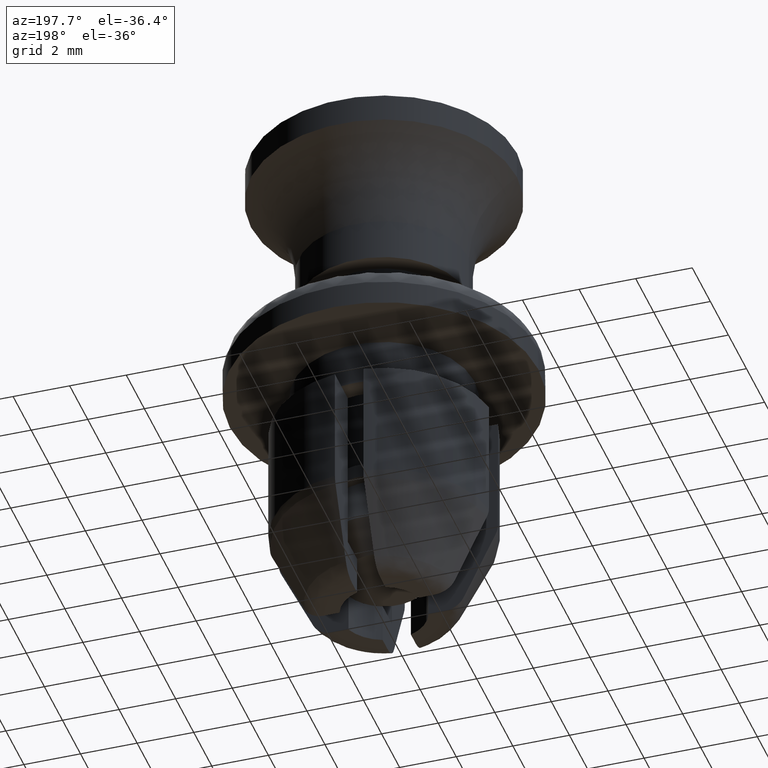
[diagram: clean part render]
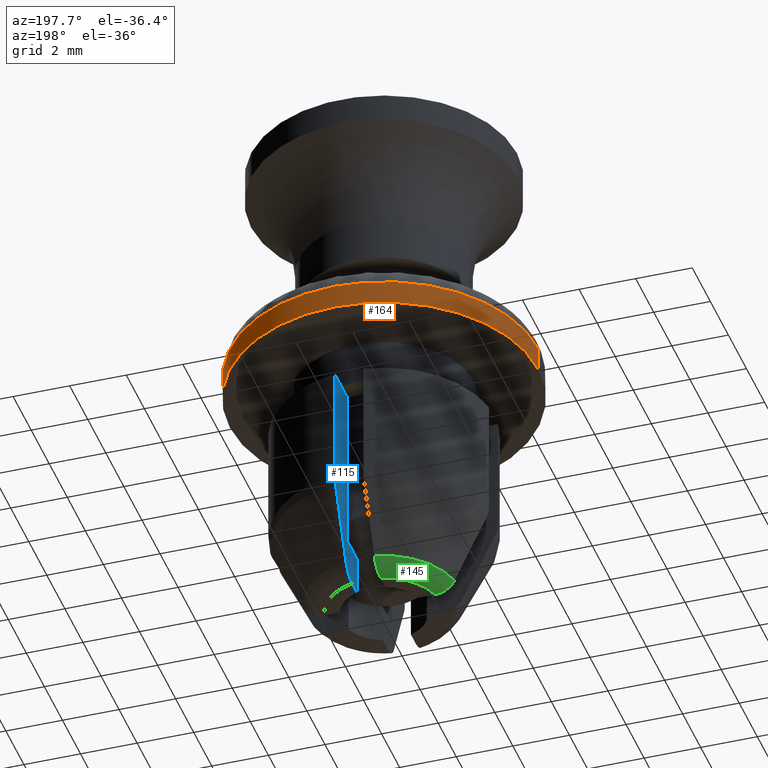
[diagram: same view with three faces highlighted in distinct colors, each labeled with its STEP entity id]
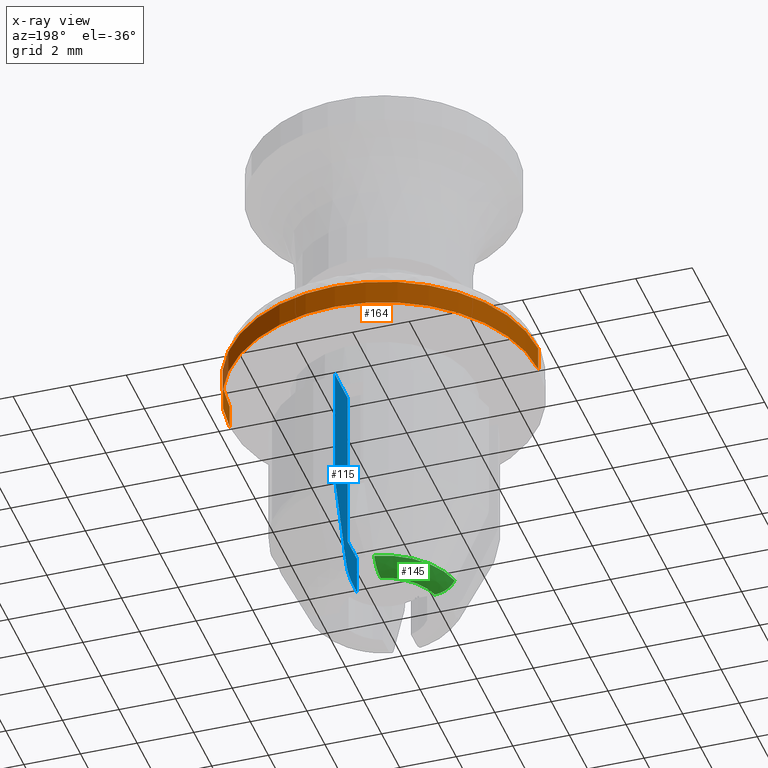
[diagram: x-ray of the same camera — body ghosted, the three highlighted faces saturated]
A machine part, auxiliary view with three faces highlighted in distinct colors.
The next image is the same camera in x-ray (body ghosted, the three faces saturated) — at least one of them is partly hidden behind the body in this view.
Their STEP definitions:

[orange] entity #164 — the highlighted cylindrical surface (partial cylindrical patch) has radius 5.45 mm, axis along (0, 0, 1).
#164=ADVANCED_FACE('',(#715),#714,.T.);
#714=CYLINDRICAL_SURFACE('',#1388,5.45000000000E+00);
#715=FACE_OUTER_BOUND('',#1389,.T.);
#1385=CARTESIAN_POINT('',(0.00000000000E+00,0.00000000000E+00,0.00000000000E+00));
#1386=DIRECTION('',(-0.00000000000E+00,-0.00000000000E+00,1.00000000000E+00));
#1387=DIRECTION('',(1.00000000000E+00,0.00000000000E+00,0.00000000000E+00));
#1388=AXIS2_PLACEMENT_3D('',#1385,#1386,#1387);
#1389=EDGE_LOOP('',(#1874,#1875,#1876,#1877));
#1874=ORIENTED_EDGE('',*,*,#2143,.T.);
#1875=ORIENTED_EDGE('',*,*,#2144,.F.);
#1876=ORIENTED_EDGE('',*,*,#2081,.F.);
#1877=ORIENTED_EDGE('',*,*,#2145,.T.);
#2081=EDGE_CURVE('',#2761,#2762,#2763,.T.);
#2143=EDGE_CURVE('',#3141,#3140,#3160,.T.);
#2144=EDGE_CURVE('',#2762,#3140,#3166,.T.);
#2145=EDGE_CURVE('',#2761,#3141,#3172,.T.);
#2761=VERTEX_POINT('',#3877);
#2762=VERTEX_POINT('',#3878);
#2763=CIRCLE('',#3882,5.45000000000E+00);
#3140=VERTEX_POINT('',#4123);
#3141=VERTEX_POINT('',#4124);
#3160=CIRCLE('',#4138,5.45000000000E+00);
#3166=(BOUNDED_CURVE() B_SPLINE_CURVE(1,(#4139,#4140),.UNSPECIFIED.,.F.,.F.) B_SPLINE_CURVE_WITH_KNOTS((2,2),(8.33332935974E-02,9.16666633252E-01),.UNSPECIFIED.) CURVE() GEOMETRIC_REPRESENTATION_ITEM() RATIONAL_B_SPLINE_CURVE((1.00000000000E+00,1.00000000000E+00)) REPRESENTATION_ITEM('') );
#3172=(BOUNDED_CURVE() B_SPLINE_CURVE(1,(#4141,#4142),.UNSPECIFIED.,.F.,.F.) B_SPLINE_CURVE_WITH_KNOTS((2,2),(8.33333333333E-02,9.16666666667E-01),.UNSPECIFIED.) CURVE() GEOMETRIC_REPRESENTATION_ITEM() RATIONAL_B_SPLINE_CURVE((7.50000000000E-01,7.50000000000E-01)) REPRESENTATION_ITEM('') );
#3877=CARTESIAN_POINT('',(-5.45000000000E+00,0.00000000000E+00,-2.00000000000E+00));
#3878=CARTESIAN_POINT('',(5.45000000000E+00,2.96059473233E-16,-2.00000000000E+00));
#3879=CARTESIAN_POINT('',(0.00000000000E+00,0.00000000000E+00,-2.00000000000E+00));
#3880=DIRECTION('',(-0.00000000000E+00,0.00000000000E+00,-1.00000000000E+00));
#3881=DIRECTION('',(-1.00000000000E+00,-1.22460635382E-16,0.00000000000E+00));
#3882=AXIS2_PLACEMENT_3D('',#3879,#3880,#3881);
#4123=CARTESIAN_POINT('',(5.45000000000E+00,2.96059473233E-16,-1.13900000000E+00));
#4124=CARTESIAN_POINT('',(-5.45000000000E+00,0.00000000000E+00,-1.13900000000E+00));
#4135=CARTESIAN_POINT('',(0.00000000000E+00,0.00000000000E+00,-1.13900000000E+00));
#4136=DIRECTION('',(-0.00000000000E+00,0.00000000000E+00,-1.00000000000E+00));
#4137=DIRECTION('',(-1.00000000000E+00,-1.22460635382E-16,0.00000000000E+00));
#4138=AXIS2_PLACEMENT_3D('',#4135,#4136,#4137);
#4139=CARTESIAN_POINT('',(5.45000000000E+00,0.00000000000E+00,-2.00000004106E+00));
#4140=CARTESIAN_POINT('',(5.45000000000E+00,0.00000000000E+00,-1.13900003452E+00));
#4141=CARTESIAN_POINT('',(-5.45000000000E+00,0.00000000000E+00,-2.00000000000E+00));
#4142=CARTESIAN_POINT('',(-5.45000000000E+00,0.00000000000E+00,-1.13900000000E+00));

[blue] entity #115 — the highlighted planar face has unit normal (-1, 0, 0).
#115=ADVANCED_FACE('',(#223),#222,.T.);
#222=PLANE('',#1026);
#223=FACE_OUTER_BOUND('',#1027,.T.);
#1023=CARTESIAN_POINT('',(5.00000000000E-01,1.16885332649E+00,-1.17403300002E+01));
#1024=DIRECTION('',(-1.00000000000E+00,0.00000000000E+00,0.00000000000E+00));
#1025=DIRECTION('',(0.00000000000E+00,0.00000000000E+00,1.00000000000E+00));
#1026=AXIS2_PLACEMENT_3D('',#1023,#1024,#1025);
#1027=EDGE_LOOP('',(#1630,#1631,#1632,#1633,#1634,#1635,#1636,#1637,#1638,#1639));
#1630=ORIENTED_EDGE('',*,*,#2021,.F.);
#1631=ORIENTED_EDGE('',*,*,#2022,.F.);
#1632=ORIENTED_EDGE('',*,*,#2023,.F.);
#1633=ORIENTED_EDGE('',*,*,#2024,.F.);
#1634=ORIENTED_EDGE('',*,*,#2025,.F.);
#1635=ORIENTED_EDGE('',*,*,#2026,.F.);
#1636=ORIENTED_EDGE('',*,*,#2027,.F.);
#1637=ORIENTED_EDGE('',*,*,#2028,.T.);
#1638=ORIENTED_EDGE('',*,*,#2029,.T.);
#1639=ORIENTED_EDGE('',*,*,#2030,.T.);
#2021=EDGE_CURVE('',#2354,#2355,#2356,.T.);
#2022=EDGE_CURVE('',#2362,#2354,#2363,.T.);
#2023=EDGE_CURVE('',#2369,#2362,#2370,.T.);
#2024=EDGE_CURVE('',#2376,#2369,#2377,.T.);
#2025=EDGE_CURVE('',#2383,#2376,#2384,.T.);
#2026=EDGE_CURVE('',#2390,#2383,#2391,.T.);
#2027=EDGE_CURVE('',#2397,#2390,#2398,.T.);
#2028=EDGE_CURVE('',#2397,#2404,#2405,.T.);
#2029=EDGE_CURVE('',#2404,#2411,#2412,.T.);
#2030=EDGE_CURVE('',#2411,#2355,#2418,.T.);
#2354=VERTEX_POINT('',#3603);
#2355=VERTEX_POINT('',#3604);
#2356=LINE('',#3605,#3606);
#2362=VERTEX_POINT('',#3608);
#2363=LINE('',#3609,#3610);
#2369=VERTEX_POINT('',#3612);
#2370=LINE('',#3613,#3614);
#2376=VERTEX_POINT('',#3616);
#2377=LINE('',#3617,#3618);
#2383=VERTEX_POINT('',#3620);
#2384=(BOUNDED_CURVE() B_SPLINE_CURVE(3,(#3621,#3622,#3623,#3624,#3625,#3626),.UNSPECIFIED.,.F.,.F.) B_SPLINE_CURVE_WITH_KNOTS((4,2,4),(1.86419617907E-03,2.03361510426E-03,2.20303402944E-03),.UNSPECIFIED.) CURVE() GEOMETRIC_REPRESENTATION_ITEM() RATIONAL_B_SPLINE_CURVE((1.00000000000E+00,1.00000000000E+00,1.00000000000E+00,1.00000000000E+00,1.00000000000E+00,1.00000000000E+00)) REPRESENTATION_ITEM('') );
#2390=VERTEX_POINT('',#3627);
#2391=(BOUNDED_CURVE() B_SPLINE_CURVE(3,(#3628,#3629,#3630,#3631),.UNSPECIFIED.,.F.,.F.) B_SPLINE_CURVE_WITH_KNOTS((4,4),(3.64126434805E-03,6.30103888672E-03),.UNSPECIFIED.) CURVE() GEOMETRIC_REPRESENTATION_ITEM() RATIONAL_B_SPLINE_CURVE((1.00000000000E+00,1.00000000000E+00,1.00000000000E+00,1.00000000000E+00)) REPRESENTATION_ITEM('') );
#2397=VERTEX_POINT('',#3632);
#2398=(BOUNDED_CURVE() B_SPLINE_CURVE(3,(#3633,#3634,#3635,#3636,#3637,#3638),.UNSPECIFIED.,.F.,.F.) B_SPLINE_CURVE_WITH_KNOTS((4,2,4),(4.64330165083E-04,8.94511229238E-04,1.32471041888E-03),.UNSPECIFIED.) CURVE() GEOMETRIC_REPRESENTATION_ITEM() RATIONAL_B_SPLINE_CURVE((1.00000000000E+00,1.00000000000E+00,1.00000000000E+00,1.00000000000E+00,1.00000000000E+00,1.00000000000E+00)) REPRESENTATION_ITEM('') );
#2404=VERTEX_POINT('',#3639);
#2405=LINE('',#3640,#3641);
#2411=VERTEX_POINT('',#3643);
#2412=LINE('',#3644,#3645);
#2418=LINE('',#3647,#3648);
#3603=CARTESIAN_POINT('',(5.00000000000E-01,2.44948974278E+00,-3.60000000000E+00));
#3604=CARTESIAN_POINT('',(5.00000000000E-01,2.44948974278E+00,-9.60030000000E+00));
#3605=CARTESIAN_POINT('',(5.00000000000E-01,2.44948974278E+00,-3.60000000000E+00));
#3606=VECTOR('',#3607,6.00030000000E+00);
#3607=DIRECTION('',(0.00000000000E+00,0.00000000000E+00,-1.00000000000E+00));
#3608=CARTESIAN_POINT('',(5.00000000000E-01,3.16069612586E+00,-3.60000000000E+00));
#3609=CARTESIAN_POINT('',(5.00000000000E-01,3.16069612586E+00,-3.60000000000E+00));
#3610=VECTOR('',#3611,7.11206383073E-01);
#3611=DIRECTION('',(0.00000000000E+00,-1.00000000000E+00,0.00000000000E+00));
#3612=CARTESIAN_POINT('',(5.00000000000E-01,3.86781592116E+00,-3.60000000000E+00));
#3613=CARTESIAN_POINT('',(5.00000000000E-01,3.86781592116E+00,-3.60000000000E+00));
#3614=VECTOR('',#3615,7.07119795307E-01);
#3615=DIRECTION('',(0.00000000000E+00,-1.00000000000E+00,0.00000000000E+00));
#3616=CARTESIAN_POINT('',(5.00000000000E-01,3.86781592116E+00,-7.83400000000E+00));
#3617=CARTESIAN_POINT('',(5.00000000000E-01,3.86781592116E+00,-7.83400000000E+00));
#3618=VECTOR('',#3619,4.23400000000E+00);
#3619=DIRECTION('',(0.00000000000E+00,0.00000000000E+00,1.00000000000E+00));
#3620=CARTESIAN_POINT('',(5.00000000000E-01,3.79146062764E+00,-8.16238480092E+00));
#3621=CARTESIAN_POINT('',(5.00000000000E-01,3.79146062763E+00,-8.16238480092E+00));
#3622=CARTESIAN_POINT('',(5.00000000000E-01,3.81640532658E+00,-8.11160438406E+00));
#3623=CARTESIAN_POINT('',(5.00000000000E-01,3.83548111475E+00,-8.05837975117E+00));
#3624=CARTESIAN_POINT('',(5.00000000000E-01,3.86143044740E+00,-7.94684863619E+00));
#3625=CARTESIAN_POINT('',(5.00000000000E-01,3.86781592116E+00,-7.89056298747E+00));
#3626=CARTESIAN_POINT('',(5.00000000000E-01,3.86781592116E+00,-7.83400000000E+00));
#3627=CARTESIAN_POINT('',(5.00000000000E-01,2.65533500711E+00,-1.05674000000E+01));
#3628=CARTESIAN_POINT('',(5.00000000000E-01,2.65533500711E+00,-1.05674000000E+01));
#3629=CARTESIAN_POINT('',(5.00000000000E-01,3.03564503778E+00,-9.76648668025E+00));
#3630=CARTESIAN_POINT('',(5.00000000000E-01,3.41387641556E+00,-8.96458658010E+00));
#3631=CARTESIAN_POINT('',(5.00000000000E-01,3.79146062763E+00,-8.16238480092E+00));
#3632=CARTESIAN_POINT('',(5.00004366201E-01,1.95950752863E+00,-1.10003000000E+01));
#3633=CARTESIAN_POINT('',(5.00000000000E-01,1.95950752863E+00,-1.10003000002E+01));
#3634=CARTESIAN_POINT('',(5.00000000000E-01,2.10320985077E+00,-1.10002966022E+01));
#3635=CARTESIAN_POINT('',(5.00000000000E-01,2.24835396483E+00,-1.09599705531E+01));
#3636=CARTESIAN_POINT('',(5.00000000000E-01,2.49284148277E+00,-1.08089170998E+01));
#3637=CARTESIAN_POINT('',(5.00000000000E-01,2.59300913039E+00,-1.06986550835E+01));
#3638=CARTESIAN_POINT('',(5.00000000000E-01,2.65533500711E+00,-1.05674000000E+01));
#3639=CARTESIAN_POINT('',(5.00000000000E-01,1.41421356237E+00,-1.10003000000E+01));
#3640=CARTESIAN_POINT('',(5.00000000000E-01,1.95950752863E+00,-1.10003000000E+01));
#3641=VECTOR('',#3642,5.45293966253E-01);
#3642=DIRECTION('',(0.00000000000E+00,-1.00000000000E+00,0.00000000000E+00));
#3643=CARTESIAN_POINT('',(5.00000000000E-01,1.41421356237E+00,-9.60030000000E+00));
#3644=CARTESIAN_POINT('',(5.00000000000E-01,1.41421356237E+00,-1.10003000000E+01));
#3645=VECTOR('',#3646,1.40000000000E+00);
#3646=DIRECTION('',(0.00000000000E+00,0.00000000000E+00,1.00000000000E+00));
#3647=CARTESIAN_POINT('',(5.00000000000E-01,1.41421356237E+00,-9.60030000000E+00));
#3648=VECTOR('',#3649,1.03527618041E+00);
#3649=DIRECTION('',(0.00000000000E+00,1.00000000000E+00,0.00000000000E+00));

[green] entity #145 — the highlighted face is a freeform B-spline surface patch.
#145=ADVANCED_FACE('',(#525),#524,.T.);
#524=( BOUNDED_SURFACE() B_SPLINE_SURFACE( 2,2,((#1180,#1181,#1182,#1183,#1184),(#1185,#1186,#1187,#1188,#1189),(#1190,#1191,#1192,#1193,#1194)), .UNSPECIFIED.,.F.,.F.,.F.) B_SPLINE_SURFACE_WITH_KNOTS((3,3),(3,2,3),(0.00000000000E+00,1.00000000000E+00),(0.00000000000E+00,5.00000000000E-01,1.00000000000E+00), .UNSPECIFIED. ) GEOMETRIC_REPRESENTATION_ITEM() RATIONAL_B_SPLINE_SURFACE(((1.00000000000E+00,8.43335485362E-01,1.00000000000E+00,8.43335485362E-01,1.00000000000E+00),(8.25683155761E-01,6.96327904919E-01,8.25683155761E-01,6.96327904919E-01,8.25683155761E-01),(1.00000000000E+00,8.43335485362E-01,1.00000000000E+00,8.43335485362E-01,1.00000000000E+00))) REPRESENTATION_ITEM('') SURFACE() );
#525=FACE_OUTER_BOUND('',#1195,.T.);
#1180=CARTESIAN_POINT('',(-2.65552173846E+00,4.99839211094E-01,-1.05670702910E+01));
#1181=CARTESIAN_POINT('',(-2.45709765910E+00,4.62490567380E-01,-1.10003000004E+01));
#1182=CARTESIAN_POINT('',(-1.98737646793E+00,3.74076653748E-01,-1.10003000004E+01));
#1183=CARTESIAN_POINT('',(-1.51765527675E+00,2.85662740117E-01,-1.10003000004E+01));
#1184=CARTESIAN_POINT('',(-1.31923119740E+00,2.48314096402E-01,-1.05670702910E+01));
#1185=CARTESIAN_POINT('',(-2.31401499849E+00,2.31417980640E+00,-1.05670702910E+01));
#1186=CARTESIAN_POINT('',(-2.14110875222E+00,2.14126124547E+00,-1.10003000004E+01));
#1187=CARTESIAN_POINT('',(-1.73179488152E+00,1.73191822277E+00,-1.10003000004E+01));
#1188=CARTESIAN_POINT('',(-1.32248101083E+00,1.32257520008E+00,-1.10003000004E+01));
#1189=CARTESIAN_POINT('',(-1.14957476456E+00,1.14965663914E+00,-1.05670702910E+01));
#1190=CARTESIAN_POINT('',(-4.99650085980E-01,2.65555732982E+00,-1.05670702910E+01));
#1191=CARTESIAN_POINT('',(-4.62315573943E-01,2.45713059103E+00,-1.10003000004E+01));
#1192=CARTESIAN_POINT('',(-3.73935113653E-01,1.98740310429E+00,-1.10003000004E+01));
#1193=CARTESIAN_POINT('',(-2.85554653362E-01,1.51767561755E+00,-1.10003000004E+01));
#1194=CARTESIAN_POINT('',(-2.48220141325E-01,1.31924887876E+00,-1.05670702910E+01));
#1195=EDGE_LOOP('',(#1772,#1773,#1774,#1775));
#1772=ORIENTED_EDGE('',*,*,#2113,.F.);
#1773=ORIENTED_EDGE('',*,*,#2017,.T.);
#1774=ORIENTED_EDGE('',*,*,#2118,.T.);
#1775=ORIENTED_EDGE('',*,*,#2119,.T.);
#2017=EDGE_CURVE('',#2327,#2320,#2328,.T.);
#2113=EDGE_CURVE('',#2327,#2970,#2971,.T.);
#2118=EDGE_CURVE('',#2320,#3002,#3003,.T.);
#2119=EDGE_CURVE('',#3002,#2970,#3009,.T.);
#2320=VERTEX_POINT('',#3580);
#2327=VERTEX_POINT('',#3585);
#2328=(BOUNDED_CURVE() B_SPLINE_CURVE(3,(#3586,#3587,#3588,#3589,#3590,#3591),.UNSPECIFIED.,.F.,.F.) B_SPLINE_CURVE_WITH_KNOTS((4,2,4),(4.15441141789E-03,4.58452043412E-03,5.01464759113E-03),.UNSPECIFIED.) CURVE() GEOMETRIC_REPRESENTATION_ITEM() RATIONAL_B_SPLINE_CURVE((1.00000000000E+00,1.00000000000E+00,1.00000000000E+00,1.00000000000E+00,1.00000000000E+00,1.00000000000E+00)) REPRESENTATION_ITEM('') );
#2970=VERTEX_POINT('',#4012);
#2971=CIRCLE('',#4016,2.02230000000E+00);
#3002=VERTEX_POINT('',#4032);
#3003=CIRCLE('',#4036,2.70200000000E+00);
#3009=(BOUNDED_CURVE() B_SPLINE_CURVE(3,(#4037,#4038,#4039,#4040,#4041,#4042),.UNSPECIFIED.,.F.,.F.) B_SPLINE_CURVE_WITH_KNOTS((4,2,4),(3.45156642889E-03,3.88167377603E-03,4.31176315010E-03),.UNSPECIFIED.) CURVE() GEOMETRIC_REPRESENTATION_ITEM() RATIONAL_B_SPLINE_CURVE((1.00000000000E+00,1.00000000000E+00,1.00000000000E+00,1.00000000000E+00,1.00000000000E+00,1.00000000000E+00)) REPRESENTATION_ITEM('') );
#3580=CARTESIAN_POINT('',(-2.65533500711E+00,5.00000000000E-01,-1.05674000000E+01));
#3585=CARTESIAN_POINT('',(-1.95950752863E+00,5.00004366201E-01,-1.10003000000E+01));
#3586=CARTESIAN_POINT('',(-1.95950752863E+00,5.00000000000E-01,-1.10003000002E+01));
#3587=CARTESIAN_POINT('',(-2.10306461000E+00,5.00000000000E-01,-1.10002966764E+01));
#3588=CARTESIAN_POINT('',(-2.24645496874E+00,5.00000000000E-01,-1.09608906252E+01));
#3589=CARTESIAN_POINT('',(-2.49280838102E+00,5.00000000000E-01,-1.08091887810E+01));
#3590=CARTESIAN_POINT('',(-2.59311273103E+00,5.00000000000E-01,-1.06984369059E+01));
#3591=CARTESIAN_POINT('',(-2.65533500711E+00,5.00000000000E-01,-1.05674000000E+01));
#4012=CARTESIAN_POINT('',(-5.00004366201E-01,1.95950752863E+00,-1.10003000000E+01));
#4013=CARTESIAN_POINT('',(0.00000000000E+00,0.00000000000E+00,-1.10003000000E+01));
#4014=DIRECTION('',(0.00000000000E+00,0.00000000000E+00,-1.00000000000E+00));
#4015=DIRECTION('',(1.00000000000E+00,-0.00000000000E+00,-0.00000000000E+00));
#4016=AXIS2_PLACEMENT_3D('',#4013,#4014,#4015);
#4032=CARTESIAN_POINT('',(-5.00000000000E-01,2.65533500711E+00,-1.05674000000E+01));
#4033=CARTESIAN_POINT('',(0.00000000000E+00,0.00000000000E+00,-1.05674000000E+01));
#4034=DIRECTION('',(0.00000000000E+00,0.00000000000E+00,-1.00000000000E+00));
#4035=DIRECTION('',(1.00000000000E+00,-0.00000000000E+00,-0.00000000000E+00));
#4036=AXIS2_PLACEMENT_3D('',#4033,#4034,#4035);
#4037=CARTESIAN_POINT('',(-5.00000000000E-01,2.65533500711E+00,-1.05674000000E+01));
#4038=CARTESIAN_POINT('',(-5.00000000000E-01,2.59379549557E+00,-1.06969990390E+01));
#4039=CARTESIAN_POINT('',(-5.00000000000E-01,2.49261588866E+00,-1.08091907891E+01));
#4040=CARTESIAN_POINT('',(-5.00000000000E-01,2.24754376132E+00,-1.09603362547E+01));
#4041=CARTESIAN_POINT('',(-5.00000000000E-01,2.10439762124E+00,-1.10002966606E+01));
#4042=CARTESIAN_POINT('',(-5.00000000000E-01,1.95950752863E+00,-1.10003000002E+01));